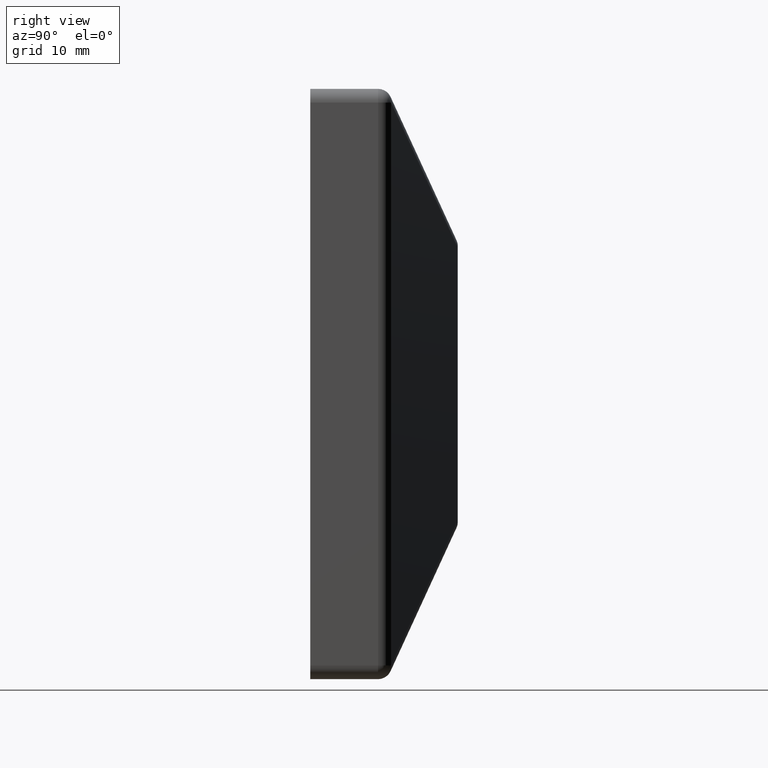
[diagram: clean part render]
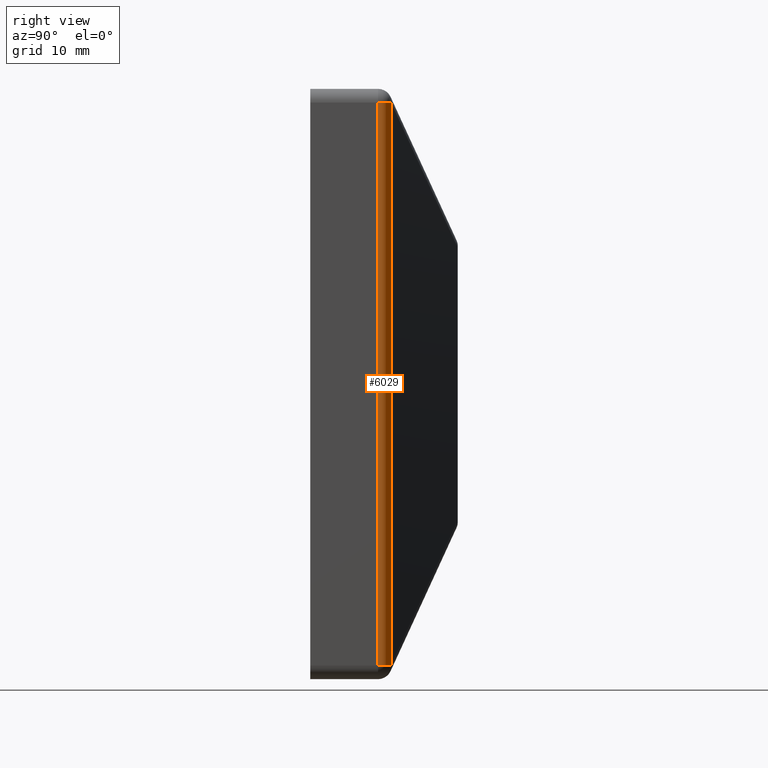
[diagram: same view with one face highlighted and labeled with its STEP entity id]
A machine part, right view. The second image highlights one B-rep face of the part: STEP entity #6029.
In plain terms, the highlighted cylindrical surface (edge-blend (fillet) strip) has radius 1.5 mm, axis along (-0, -0, 1).
Its self-contained STEP definition (entity closure, byte-faithful):
#197 = DIRECTION ( 'NONE',  ( -0.000000000000000000, -0.000000000000000000, 1.000000000000000000 ) ) ;
#234 = VERTEX_POINT ( 'NONE', #13273 ) ;
#809 = ORIENTED_EDGE ( 'NONE', *, *, #8478, .T. ) ;
#906 = DIRECTION ( 'NONE',  ( 1.000000000000000000, -4.625929269271481378E-15, 0.000000000000000000 ) ) ;
#972 = EDGE_CURVE ( 'NONE', #2840, #13323, #2124, .T. ) ;
#1674 = CIRCLE ( 'NONE', #8297, 1.500000000000001332 ) ;
#1734 = AXIS2_PLACEMENT_3D ( 'NONE', #5561, #4420, #8969 ) ;
#2124 = LINE ( 'NONE', #10276, #2624 ) ;
#2196 = EDGE_LOOP ( 'NONE', ( #10899, #12418, #8273, #809 ) ) ;
#2624 = VECTOR ( 'NONE', #4819, 1000.000000000000000 ) ;
#2840 = VERTEX_POINT ( 'NONE', #13860 ) ;
#2946 = AXIS2_PLACEMENT_3D ( 'NONE', #10396, #8182, #12382 ) ;
#3058 = FACE_OUTER_BOUND ( 'NONE', #2196, .T. ) ;
#3516 = EDGE_CURVE ( 'NONE', #2840, #10880, #9126, .T. ) ;
#4420 = DIRECTION ( 'NONE',  ( -0.000000000000000000, -0.000000000000000000, 1.000000000000000000 ) ) ;
#4819 = DIRECTION ( 'NONE',  ( -0.000000000000000000, -0.000000000000000000, 1.000000000000000000 ) ) ;
#5459 = DIRECTION ( 'NONE',  ( 0.000000000000000000, 0.000000000000000000, -1.000000000000000000 ) ) ;
#5561 = CARTESIAN_POINT ( 'NONE',  ( 20.50000000000000355, 7.350000000000001421, -32.00000000000000000 ) ) ;
#5903 = EDGE_CURVE ( 'NONE', #10880, #234, #11280, .T. ) ;
#6029 = ADVANCED_FACE ( 'NONE', ( #3058 ), #11966, .T. ) ;
#6736 = CARTESIAN_POINT ( 'NONE',  ( 20.99398661309881575, 8.766325254339259132, -32.00000000000000000 ) ) ;
#7497 = CARTESIAN_POINT ( 'NONE',  ( 22.00000000000000711, 7.350000000000001421, 30.50000000000000000 ) ) ;
#8182 = DIRECTION ( 'NONE',  ( -0.000000000000000000, -0.000000000000000000, 1.000000000000000000 ) ) ;
#8273 = ORIENTED_EDGE ( 'NONE', *, *, #5903, .T. ) ;
#8297 = AXIS2_PLACEMENT_3D ( 'NONE', #8664, #5459, #906 ) ;
#8381 = VECTOR ( 'NONE', #197, 1000.000000000000000 ) ;
#8478 = EDGE_CURVE ( 'NONE', #234, #13323, #1674, .T. ) ;
#8664 = CARTESIAN_POINT ( 'NONE',  ( 20.50000000000000355, 7.350000000000001421, 30.50000000000000000 ) ) ;
#8969 = DIRECTION ( 'NONE',  ( 1.000000000000000000, 0.000000000000000000, 0.000000000000000000 ) ) ;
#9126 = CIRCLE ( 'NONE', #2946, 1.500000000000001332 ) ;
#10276 = CARTESIAN_POINT ( 'NONE',  ( 22.00000000000000711, 7.350000000000001421, -32.00000000000000000 ) ) ;
#10396 = CARTESIAN_POINT ( 'NONE',  ( 20.50000000000000355, 7.350000000000001421, -30.50000000000000000 ) ) ;
#10880 = VERTEX_POINT ( 'NONE', #12793 ) ;
#10899 = ORIENTED_EDGE ( 'NONE', *, *, #972, .F. ) ;
#11280 = LINE ( 'NONE', #6736, #8381 ) ;
#11966 = CYLINDRICAL_SURFACE ( 'NONE', #1734, 1.500000000000001332 ) ;
#12382 = DIRECTION ( 'NONE',  ( 1.000000000000000000, 0.000000000000000000, 0.000000000000000000 ) ) ;
#12418 = ORIENTED_EDGE ( 'NONE', *, *, #3516, .T. ) ;
#12793 = CARTESIAN_POINT ( 'NONE',  ( 20.99398661309881575, 8.766325254339259132, -30.50000000000000000 ) ) ;
#13273 = CARTESIAN_POINT ( 'NONE',  ( 20.99398661309881575, 8.766325254339259132, 30.50000000000000000 ) ) ;
#13323 = VERTEX_POINT ( 'NONE', #7497 ) ;
#13860 = CARTESIAN_POINT ( 'NONE',  ( 22.00000000000000711, 7.350000000000001421, -30.50000000000000000 ) ) ;